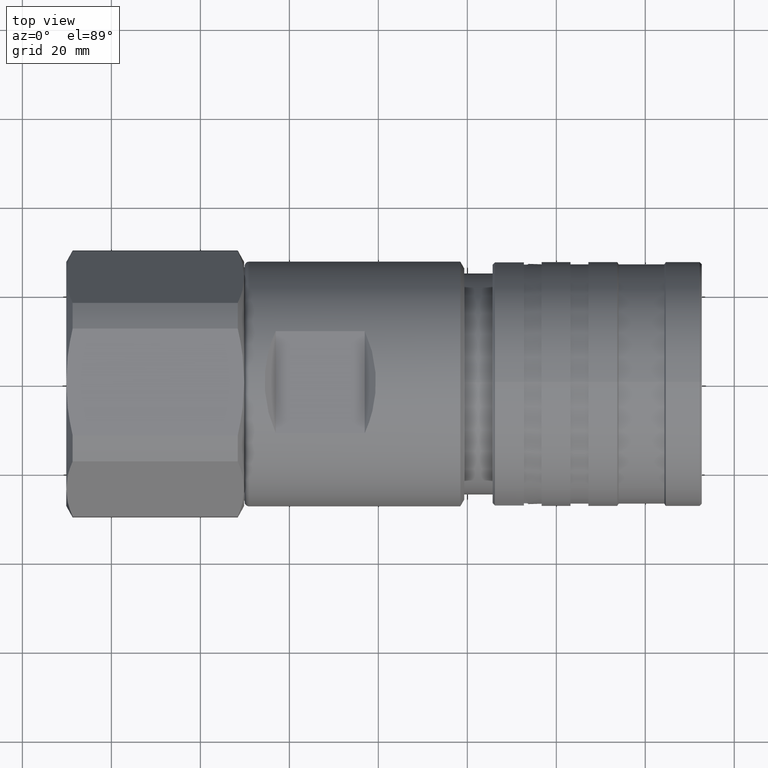
[diagram: clean part render]
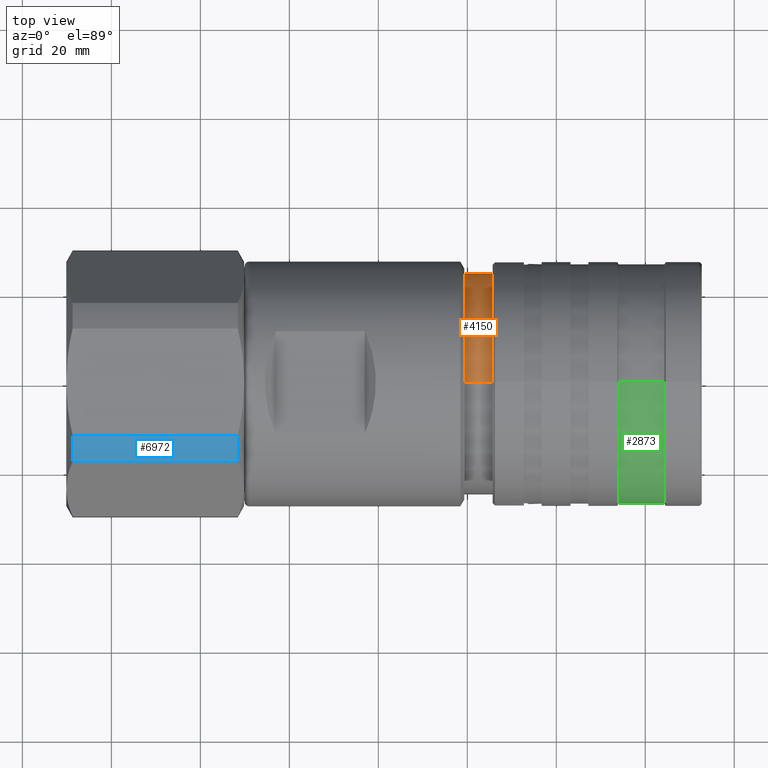
[diagram: same view with three faces highlighted in distinct colors, each labeled with its STEP entity id]
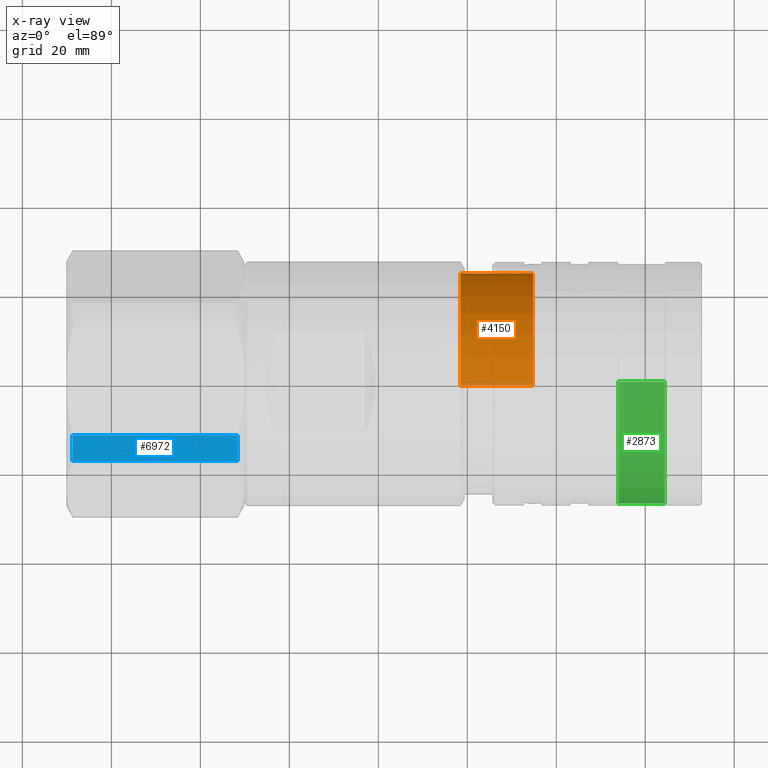
[diagram: x-ray of the same camera — body ghosted, the three highlighted faces saturated]
A machine part, top view with three faces highlighted in distinct colors.
The next image is the same camera in x-ray (body ghosted, the three faces saturated) — at least one of them is partly hidden behind the body in this view.
Their STEP definitions:

[orange] entity #4150 — the highlighted cylindrical surface (partial cylindrical patch) has radius 24.85 mm, axis along (-1, 0, 0).
#244 = ORIENTED_EDGE ( 'NONE', *, *, #4167, .T. ) ;
#366 = ORIENTED_EDGE ( 'NONE', *, *, #4187, .T. ) ;
#426 = ORIENTED_EDGE ( 'NONE', *, *, #4165, .T. ) ;
#431 = ORIENTED_EDGE ( 'NONE', *, *, #4191, .F. ) ;
#517 = ORIENTED_EDGE ( 'NONE', *, *, #4192, .F. ) ;
#771 = ORIENTED_EDGE ( 'NONE', *, *, #4010, .T. ) ;
#864 = EDGE_LOOP ( 'NONE', ( #426, #366, #431, #517 ) ) ;
#897 = EDGE_LOOP ( 'NONE', ( #771, #244 ) ) ;
#1381 = CARTESIAN_POINT ( 'NONE',  ( 32.28934113121633200, 24.85001470934100700, 0.4680838735866470500 ) ) ;
#1389 = CARTESIAN_POINT ( 'NONE',  ( 32.12390491568571300, 24.83699799724628600, 0.8699163866006353100 ) ) ;
#1390 = CARTESIAN_POINT ( 'NONE',  ( 30.60181901525311300, 24.79170965411044800, 1.701068025179111500 ) ) ;
#1391 = CARTESIAN_POINT ( 'NONE',  ( 31.06874611064780800, 24.79173353628072400, 1.700719961596307100 ) ) ;
#1392 = CARTESIAN_POINT ( 'NONE',  ( 31.46572507324591700, 24.80479993110333600, 1.534641460676829700 ) ) ;
#2327 = CARTESIAN_POINT ( 'NONE',  ( 31.46361817428746500, 24.80472951245650000, -1.535729334348020900 ) ) ;
#2373 = CARTESIAN_POINT ( 'NONE',  ( 31.06609228796118700, 24.79171032890679200, -1.701058190566562000 ) ) ;
#2385 = CARTESIAN_POINT ( 'NONE',  ( 30.59999999999996600, 24.79170958641619600, -1.701069011768549400 ) ) ;
#2393 = CARTESIAN_POINT ( 'NONE',  ( 32.12339252003445000, 24.83694058213568900, -0.8714661748851132400 ) ) ;
#2404 = CARTESIAN_POINT ( 'NONE',  ( 32.28853794029380000, 24.84998526616036300, -0.4696443748085769000 ) ) ;
#2632 = CARTESIAN_POINT ( 'NONE',  ( 18.39999999999999900, 0.0000000000000000000, 24.85000000000000100 ) ) ;
#2687 = CARTESIAN_POINT ( 'NONE',  ( 30.13346614842379300, 24.79170884322218200, -1.701079843222274200 ) ) ;
#2727 = CARTESIAN_POINT ( 'NONE',  ( 18.39999999999999900, 3.043247295881172600E-015, -24.85000000000000100 ) ) ;
#3039 = DIRECTION ( 'NONE',  ( -1.000000000000000000, 0.0000000000000000000, 0.0000000000000000000 ) ) ;
#3049 = CARTESIAN_POINT ( 'NONE',  ( 14.36565452091766000, 0.0000000000000000000, 0.0000000000000000000 ) ) ;
#3164 = DIRECTION ( 'NONE',  ( -1.000000000000000000, 0.0000000000000000000, 0.0000000000000000000 ) ) ;
#3182 = CARTESIAN_POINT ( 'NONE',  ( 14.36565452091766000, 0.0000000000000000000, 24.85000000000000100 ) ) ;
#3183 = CARTESIAN_POINT ( 'NONE',  ( 30.59999999999996600, 24.79170958641619600, -1.701069011768549400 ) ) ;
#3206 = DIRECTION ( 'NONE',  ( -1.000000000000000000, 0.0000000000000000000, 0.0000000000000000000 ) ) ;
#3258 = CARTESIAN_POINT ( 'NONE',  ( 18.39999999999999900, 0.0000000000000000000, 0.0000000000000000000 ) ) ;
#3306 = CARTESIAN_POINT ( 'NONE',  ( 30.13489191985841800, 24.79168577194017700, 1.701416088761883200 ) ) ;
#3320 = DIRECTION ( 'NONE',  ( -1.000000000000000000, 0.0000000000000000000, 0.0000000000000000000 ) ) ;
#3323 = CARTESIAN_POINT ( 'NONE',  ( 28.91119366027338700, 24.85000566123890000, -0.4693530867450141900 ) ) ;
#3335 = CARTESIAN_POINT ( 'NONE',  ( 14.36565452091766000, 3.043247295881172600E-015, -24.85000000000000100 ) ) ;
#3341 = CARTESIAN_POINT ( 'NONE',  ( 30.60181901525311300, 24.79170965411044800, 1.701068025179111500 ) ) ;
#3346 = CARTESIAN_POINT ( 'NONE',  ( 34.78932239288290200, 0.0000000000000000000, 24.85000000000000100 ) ) ;
#3360 = CARTESIAN_POINT ( 'NONE',  ( 29.07565114488901500, 24.83696921605042400, 0.8705238693955758000 ) ) ;
#3369 = CARTESIAN_POINT ( 'NONE',  ( 34.78932239288290200, 0.0000000000000000000, 0.0000000000000000000 ) ) ;
#3370 = CARTESIAN_POINT ( 'NONE',  ( 29.07611550863295900, 24.83697713292676600, -0.8705044552527110300 ) ) ;
#3401 = CARTESIAN_POINT ( 'NONE',  ( 29.73481425118380600, 24.80482405461343400, 1.534130133298554600 ) ) ;
#3406 = DIRECTION ( 'NONE',  ( 0.0000000000000000000, 0.0000000000000000000, -1.000000000000000000 ) ) ;
#3414 = CARTESIAN_POINT ( 'NONE',  ( 28.91092696528552600, 24.84999433514805000, 0.4699523664711866600 ) ) ;
#3473 = DIRECTION ( 'NONE',  ( 0.0000000000000000000, 0.0000000000000000000, 1.000000000000000000 ) ) ;
#3481 = CARTESIAN_POINT ( 'NONE',  ( 34.78932239288290200, 3.043247295881172600E-015, -24.85000000000000100 ) ) ;
#3489 = DIRECTION ( 'NONE',  ( -1.000000000000000000, -0.0000000000000000000, -0.0000000000000000000 ) ) ;
#3694 = DIRECTION ( 'NONE',  ( 0.0000000000000000000, 0.0000000000000000000, 1.000000000000000000 ) ) ;
#3726 = CARTESIAN_POINT ( 'NONE',  ( 29.73538247983516700, 24.80476572773333600, -1.535189988375312200 ) ) ;
#3736 = CARTESIAN_POINT ( 'NONE',  ( 30.59999999999996600, 24.79170958641619600, -1.701069011768549400 ) ) ;
#3850 = CARTESIAN_POINT ( 'NONE',  ( 30.60181901525311300, 24.79170965411044800, 1.701068025179111500 ) ) ;
#4010 = EDGE_CURVE ( 'NONE', #4866, #4417, #6862, .T. ) ;
#4150 = ADVANCED_FACE ( 'NONE', ( #5302, #5288 ), #5285, .T. ) ;
#4165 = EDGE_CURVE ( 'NONE', #4445, #4398, #5257, .T. ) ;
#4167 = EDGE_CURVE ( 'NONE', #4417, #4866, #6848, .T. ) ;
#4187 = EDGE_CURVE ( 'NONE', #4398, #4219, #5303, .T. ) ;
#4191 = EDGE_CURVE ( 'NONE', #5062, #4219, #5311, .T. ) ;
#4192 = EDGE_CURVE ( 'NONE', #4445, #5062, #5306, .T. ) ;
#4219 = VERTEX_POINT ( 'NONE', #2727 ) ;
#4398 = VERTEX_POINT ( 'NONE', #3481 ) ;
#4417 = VERTEX_POINT ( 'NONE', #3850 ) ;
#4445 = VERTEX_POINT ( 'NONE', #3346 ) ;
#4866 = VERTEX_POINT ( 'NONE', #3183 ) ;
#5062 = VERTEX_POINT ( 'NONE', #2632 ) ;
#5257 = CIRCLE ( 'NONE', #6380, 24.85000000000000100 ) ;
#5285 = CYLINDRICAL_SURFACE ( 'NONE', #6527, 24.85000000000000100 ) ;
#5288 = FACE_OUTER_BOUND ( 'NONE', #864, .T. ) ;
#5302 = FACE_BOUND ( 'NONE', #897, .T. ) ;
#5303 = LINE ( 'NONE', #3335, #5304 ) ;
#5304 = VECTOR ( 'NONE', #3206, 1000.000000000000000 ) ;
#5305 = VECTOR ( 'NONE', #3164, 1000.000000000000000 ) ;
#5306 = LINE ( 'NONE', #3182, #5305 ) ;
#5311 = CIRCLE ( 'NONE', #6399, 24.85000000000000100 ) ;
#6380 = AXIS2_PLACEMENT_3D ( 'NONE', #3369, #3489, #3406 ) ;
#6399 = AXIS2_PLACEMENT_3D ( 'NONE', #3258, #3320, #3473 ) ;
#6527 = AXIS2_PLACEMENT_3D ( 'NONE', #3049, #3039, #3694 ) ;
#6848 = B_SPLINE_CURVE_WITH_KNOTS ( 'NONE', 3,
 ( #3341, #3306, #3401, #3360, #3414, #3323, #3370, #3726, #2687, #3736 ),
 .UNSPECIFIED., .F., .F.,
 ( 4, 2, 2, 2, 4 ),
 ( 0.5000000000000000000, 0.6250000000000000000, 0.7500000000000000000, 0.8750000000000000000, 1.000000000000000000 ),
 .UNSPECIFIED. ) ;
#6862 = B_SPLINE_CURVE_WITH_KNOTS ( 'NONE', 3,
 ( #2385, #2373, #2327, #2393, #2404, #1381, #1389, #1392, #1391, #1390 ),
 .UNSPECIFIED., .F., .F.,
 ( 4, 2, 2, 2, 4 ),
 ( 0.0000000000000000000, 0.1250000000000000000, 0.2500000000000000000, 0.3750000000000000000, 0.5000000000000000000 ),
 .UNSPECIFIED. ) ;

[blue] entity #6972 — the highlighted cylindrical surface (partial cylindrical patch) has radius 30 mm, axis along (1, 0, 0).
#237 = EDGE_LOOP ( 'NONE', ( #7363, #7365, #7364, #7362 ) ) ;
#379 = EDGE_CURVE ( 'NONE', #4313, #4322, #6123, .T. ) ;
#1440 = DIRECTION ( 'NONE',  ( 0.0000000000000000000, 0.0000000000000000000, -1.000000000000000000 ) ) ;
#2233 = DIRECTION ( 'NONE',  ( 1.000000000000000000, 0.0000000000000000000, 0.0000000000000000000 ) ) ;
#2235 = CARTESIAN_POINT ( 'NONE',  ( -31.59337567297405200, -3.089352188488119700E-015, -1.919073878579844800E-015 ) ) ;
#3084 = CARTESIAN_POINT ( 'NONE',  ( -68.70662432702600600, -11.98957880828180000, 27.50000000000000000 ) ) ;
#3366 = CARTESIAN_POINT ( 'NONE',  ( -30.14999999999999900, -3.089352188488119700E-015, -1.919073878579844800E-015 ) ) ;
#3386 = DIRECTION ( 'NONE',  ( 0.0000000000000000000, 0.0000000000000000000, -1.000000000000000000 ) ) ;
#3387 = DIRECTION ( 'NONE',  ( 1.000000000000000000, 0.0000000000000000000, 0.0000000000000000000 ) ) ;
#3515 = CARTESIAN_POINT ( 'NONE',  ( -30.14999999999999900, -11.98957880828180000, 27.50000000000000000 ) ) ;
#3645 = DIRECTION ( 'NONE',  ( 0.0000000000000000000, 0.0000000000000000000, -1.000000000000000000 ) ) ;
#3647 = CARTESIAN_POINT ( 'NONE',  ( -68.70662432702600600, -3.089352188488119700E-015, -1.919073878579844800E-015 ) ) ;
#3649 = DIRECTION ( 'NONE',  ( 1.000000000000000000, 0.0000000000000000000, 0.0000000000000000000 ) ) ;
#3650 = CARTESIAN_POINT ( 'NONE',  ( -30.14999999999999900, -17.82090919993115100, 24.13327982864760200 ) ) ;
#3651 = DIRECTION ( 'NONE',  ( 1.000000000000000000, 0.0000000000000000000, 0.0000000000000000000 ) ) ;
#3816 = CARTESIAN_POINT ( 'NONE',  ( -68.70662432702600600, -17.82090919993115100, 24.13327982864760200 ) ) ;
#3822 = DIRECTION ( 'NONE',  ( -1.000000000000000000, -0.0000000000000000000, -0.0000000000000000000 ) ) ;
#3882 = CARTESIAN_POINT ( 'NONE',  ( -31.59337567297405200, -17.82090919993115100, 24.13327982864760200 ) ) ;
#3943 = CARTESIAN_POINT ( 'NONE',  ( -31.59337567297405200, -11.98957880828180000, 27.50000000000000000 ) ) ;
#4202 = VERTEX_POINT ( 'NONE', #3084 ) ;
#4286 = VERTEX_POINT ( 'NONE', #3816 ) ;
#4313 = VERTEX_POINT ( 'NONE', #3943 ) ;
#4322 = VERTEX_POINT ( 'NONE', #3882 ) ;
#5156 = VECTOR ( 'NONE', #3822, 1000.000000000000000 ) ;
#5157 = LINE ( 'NONE', #3515, #5156 ) ;
#5159 = CIRCLE ( 'NONE', #6408, 30.00000000000000000 ) ;
#5161 = VECTOR ( 'NONE', #3649, 1000.000000000000000 ) ;
#5163 = LINE ( 'NONE', #3650, #5161 ) ;
#5740 = CYLINDRICAL_SURFACE ( 'NONE', #6358, 30.00000000000000000 ) ;
#5741 = FACE_OUTER_BOUND ( 'NONE', #237, .T. ) ;
#6123 = CIRCLE ( 'NONE', #6690, 30.00000000000000000 ) ;
#6358 = AXIS2_PLACEMENT_3D ( 'NONE', #3366, #3387, #3386 ) ;
#6408 = AXIS2_PLACEMENT_3D ( 'NONE', #3647, #3651, #3645 ) ;
#6690 = AXIS2_PLACEMENT_3D ( 'NONE', #2235, #2233, #1440 ) ;
#6766 = EDGE_CURVE ( 'NONE', #4286, #4322, #5163, .T. ) ;
#6767 = EDGE_CURVE ( 'NONE', #4202, #4286, #5159, .T. ) ;
#6769 = EDGE_CURVE ( 'NONE', #4313, #4202, #5157, .T. ) ;
#6972 = ADVANCED_FACE ( 'NONE', ( #5741 ), #5740, .T. ) ;
#7362 = ORIENTED_EDGE ( 'NONE', *, *, #6769, .T. ) ;
#7363 = ORIENTED_EDGE ( 'NONE', *, *, #6767, .T. ) ;
#7364 = ORIENTED_EDGE ( 'NONE', *, *, #379, .F. ) ;
#7365 = ORIENTED_EDGE ( 'NONE', *, *, #6766, .T. ) ;

[green] entity #2873 — the highlighted cylindrical surface (partial cylindrical patch) has radius 27 mm, axis along (-1, 0, 0).
#2 = EDGE_CURVE ( 'NONE', #5106, #4266, #7581, .T. ) ;
#68 = EDGE_CURVE ( 'NONE', #4358, #4382, #7162, .T. ) ;
#989 = EDGE_LOOP ( 'NONE', ( #7629, #7299, #7521, #7245 ) ) ;
#1442 = DIRECTION ( 'NONE',  ( 0.0000000000000000000, 0.0000000000000000000, 1.000000000000000000 ) ) ;
#1486 = CARTESIAN_POINT ( 'NONE',  ( 25.69999999999999900, 0.0000000000000000000, 0.0000000000000000000 ) ) ;
#1685 = DIRECTION ( 'NONE',  ( -1.000000000000000000, 0.0000000000000000000, 0.0000000000000000000 ) ) ;
#2649 = CARTESIAN_POINT ( 'NONE',  ( 64.29999999999999700, 3.306546357697853700E-015, -27.00000000000000000 ) ) ;
#2731 = CARTESIAN_POINT ( 'NONE',  ( 64.29999999999999700, 0.0000000000000000000, 27.00000000000000000 ) ) ;
#2774 = CARTESIAN_POINT ( 'NONE',  ( 54.00000000000000000, 3.337162527676537500E-015, -27.00000000000000000 ) ) ;
#2873 = ADVANCED_FACE ( 'NONE', ( #5731 ), #5732, .T. ) ;
#3482 = CARTESIAN_POINT ( 'NONE',  ( 54.00000000000000000, 0.0000000000000000000, 27.00000000000000000 ) ) ;
#3612 = CARTESIAN_POINT ( 'NONE',  ( 25.69999999999999900, 3.306546357697853700E-015, -27.00000000000000000 ) ) ;
#3613 = DIRECTION ( 'NONE',  ( -1.000000000000000000, 0.0000000000000000000, 0.0000000000000000000 ) ) ;
#3729 = CARTESIAN_POINT ( 'NONE',  ( 25.69999999999999900, 0.0000000000000000000, 27.00000000000000000 ) ) ;
#3737 = DIRECTION ( 'NONE',  ( -1.000000000000000000, 0.0000000000000000000, 0.0000000000000000000 ) ) ;
#4068 = AXIS2_PLACEMENT_3D ( 'NONE', #5071, #5063, #4919 ) ;
#4266 = VERTEX_POINT ( 'NONE', #2731 ) ;
#4358 = VERTEX_POINT ( 'NONE', #2774 ) ;
#4382 = VERTEX_POINT ( 'NONE', #3482 ) ;
#4919 = DIRECTION ( 'NONE',  ( 0.0000000000000000000, 0.0000000000000000000, 1.000000000000000000 ) ) ;
#5040 = DIRECTION ( 'NONE',  ( 0.0000000000000000000, 0.0000000000000000000, 1.000000000000000000 ) ) ;
#5041 = DIRECTION ( 'NONE',  ( -1.000000000000000000, 0.0000000000000000000, 0.0000000000000000000 ) ) ;
#5047 = CARTESIAN_POINT ( 'NONE',  ( 54.00000000000000000, 0.0000000000000000000, 0.0000000000000000000 ) ) ;
#5063 = DIRECTION ( 'NONE',  ( -1.000000000000000000, 0.0000000000000000000, 0.0000000000000000000 ) ) ;
#5071 = CARTESIAN_POINT ( 'NONE',  ( 64.29999999999999700, 0.0000000000000000000, 0.0000000000000000000 ) ) ;
#5106 = VERTEX_POINT ( 'NONE', #2649 ) ;
#5731 = FACE_OUTER_BOUND ( 'NONE', #989, .T. ) ;
#5732 = CYLINDRICAL_SURFACE ( 'NONE', #6640, 27.00000000000000000 ) ;
#5813 = LINE ( 'NONE', #3729, #5902 ) ;
#5892 = VECTOR ( 'NONE', #3613, 1000.000000000000000 ) ;
#5894 = LINE ( 'NONE', #3612, #5892 ) ;
#5902 = VECTOR ( 'NONE', #3737, 1000.000000000000000 ) ;
#6640 = AXIS2_PLACEMENT_3D ( 'NONE', #1486, #1685, #1442 ) ;
#6895 = EDGE_CURVE ( 'NONE', #4266, #4382, #5813, .T. ) ;
#6901 = EDGE_CURVE ( 'NONE', #5106, #4358, #5894, .T. ) ;
#6925 = AXIS2_PLACEMENT_3D ( 'NONE', #5047, #5041, #5040 ) ;
#7162 = CIRCLE ( 'NONE', #6925, 27.00000000000000000 ) ;
#7245 = ORIENTED_EDGE ( 'NONE', *, *, #68, .F. ) ;
#7299 = ORIENTED_EDGE ( 'NONE', *, *, #2, .T. ) ;
#7521 = ORIENTED_EDGE ( 'NONE', *, *, #6895, .T. ) ;
#7581 = CIRCLE ( 'NONE', #4068, 27.00000000000000000 ) ;
#7629 = ORIENTED_EDGE ( 'NONE', *, *, #6901, .F. ) ;